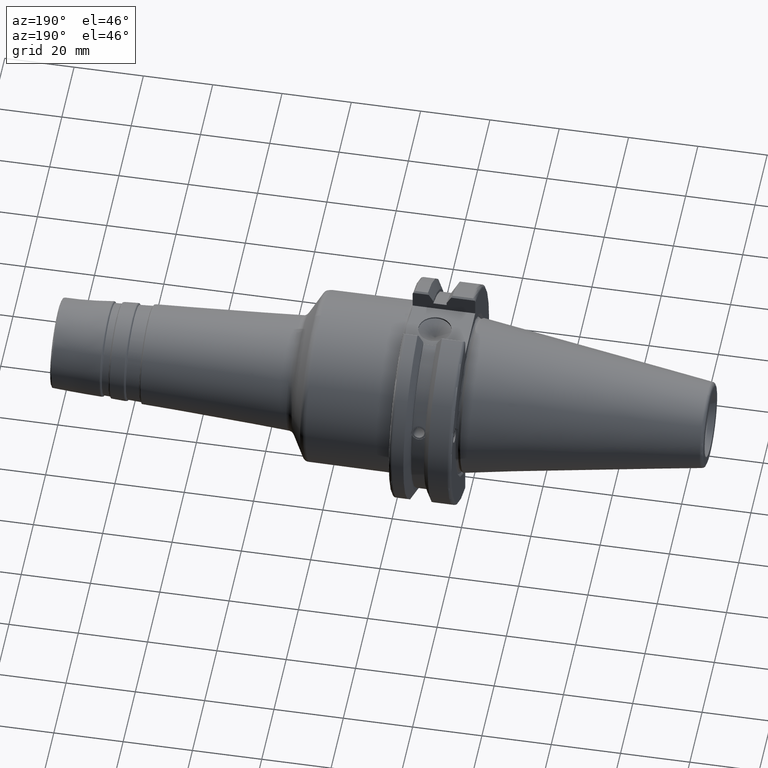
[diagram: clean part render]
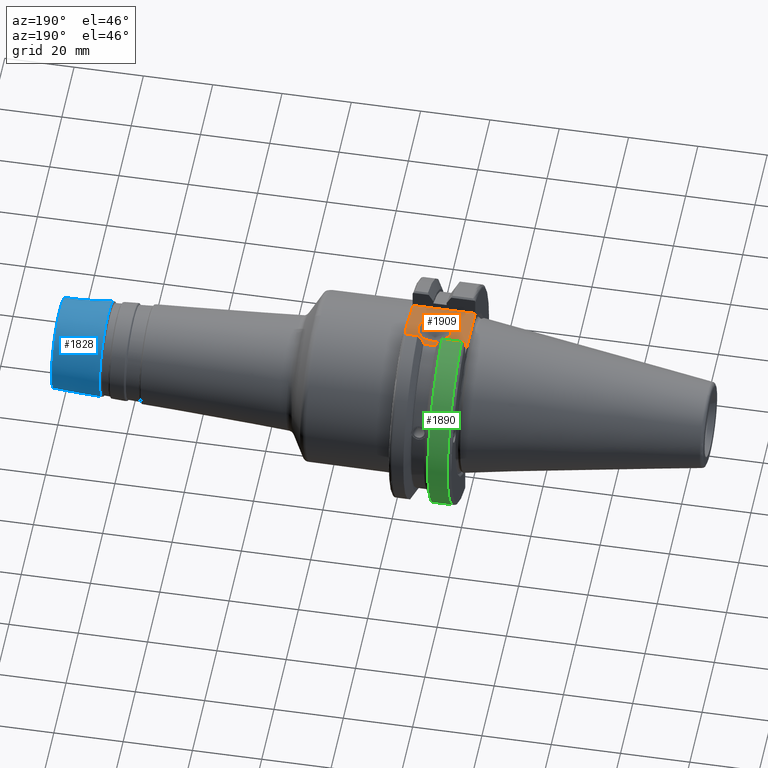
[diagram: same view with three faces highlighted in distinct colors, each labeled with its STEP entity id]
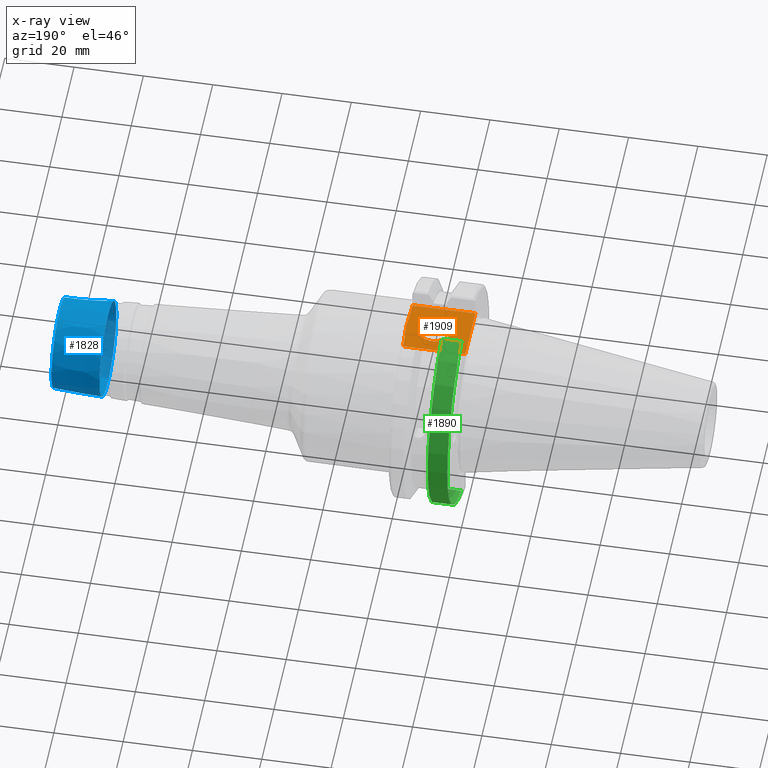
[diagram: x-ray of the same camera — body ghosted, the three highlighted faces saturated]
A machine part, auxiliary view with three faces highlighted in distinct colors.
The next image is the same camera in x-ray (body ghosted, the three faces saturated) — at least one of them is partly hidden behind the body in this view.
Their STEP definitions:

[orange] entity #1909 — the highlighted planar face has unit normal (0, 0, 1).
#81=B_SPLINE_CURVE_WITH_KNOTS('',3,(#2911,#2912,#2913,#2914,#2915,#2916,
#2917,#2918,#2919,#2920),.UNSPECIFIED.,.F.,.F.,(4,2,2,2,4),(1.28229186042809,
1.47392183654147,1.862003561099,2.25008528565653,2.44171526176991),
 .UNSPECIFIED.);
#129=FACE_BOUND('',#587,.T.);
#162=PLANE('',#2171);
#176=LINE('',#2952,#269);
#190=LINE('',#3113,#283);
#225=LINE('',#3517,#318);
#227=LINE('',#3560,#320);
#238=LINE('',#3622,#331);
#269=VECTOR('',#2352,10.);
#283=VECTOR('',#2430,10.);
#318=VECTOR('',#2615,10.);
#320=VECTOR('',#2625,10.);
#331=VECTOR('',#2646,10.);
#468=FACE_OUTER_BOUND('',#586,.T.);
#586=EDGE_LOOP('',(#1737,#1738,#1739,#1740,#1741,#1742));
#587=EDGE_LOOP('',(#1743));
#714=CIRCLE('',#2162,4.7625);
#768=VERTEX_POINT('',#2909);
#769=VERTEX_POINT('',#2910);
#775=VERTEX_POINT('',#2951);
#800=VERTEX_POINT('',#3111);
#877=VERTEX_POINT('',#3515);
#883=VERTEX_POINT('',#3559);
#914=VERTEX_POINT('',#3718);
#979=EDGE_CURVE('',#768,#769,#81,.F.);
#986=EDGE_CURVE('',#768,#775,#176,.T.);
#1024=EDGE_CURVE('',#800,#769,#190,.T.);
#1130=EDGE_CURVE('',#800,#877,#225,.T.);
#1138=EDGE_CURVE('',#883,#775,#227,.T.);
#1157=EDGE_CURVE('',#883,#877,#238,.T.);
#1191=EDGE_CURVE('',#914,#914,#714,.T.);
#1737=ORIENTED_EDGE('',*,*,#1024,.F.);
#1738=ORIENTED_EDGE('',*,*,#1130,.T.);
#1739=ORIENTED_EDGE('',*,*,#1157,.F.);
#1740=ORIENTED_EDGE('',*,*,#1138,.T.);
#1741=ORIENTED_EDGE('',*,*,#986,.F.);
#1742=ORIENTED_EDGE('',*,*,#979,.T.);
#1743=ORIENTED_EDGE('',*,*,#1191,.T.);
#1909=ADVANCED_FACE('',(#468,#129),#162,.T.);
#2162=AXIS2_PLACEMENT_3D('',#3719,#2718,#2719);
#2171=AXIS2_PLACEMENT_3D('',#3738,#2738,#2739);
#2352=DIRECTION('',(0.,-1.,0.));
#2430=DIRECTION('',(0.,-1.,0.));
#2615=DIRECTION('',(-1.,0.,0.));
#2625=DIRECTION('',(1.,-1.16558847729675E-16,0.));
#2646=DIRECTION('',(0.,1.,0.));
#2718=DIRECTION('center_axis',(0.,0.,-1.));
#2719=DIRECTION('ref_axis',(1.,0.,0.));
#2738=DIRECTION('center_axis',(0.,0.,1.));
#2739=DIRECTION('ref_axis',(1.,0.,0.));
#2909=CARTESIAN_POINT('',(19.05,-6.16948133962652,25.));
#2910=CARTESIAN_POINT('',(19.05,6.16948133962652,25.));
#2911=CARTESIAN_POINT('Ctrl Pts',(19.05,6.16948133962652,25.));
#2912=CARTESIAN_POINT('Ctrl Pts',(19.05,5.53071475258193,25.));
#2913=CARTESIAN_POINT('Ctrl Pts',(19.0917093675371,4.76533047486055,25.));
#2914=CARTESIAN_POINT('Ctrl Pts',(19.2334466867335,2.83816328553263,25.));
#2915=CARTESIAN_POINT('Ctrl Pts',(19.3885621722339,1.29360574852511,25.));
#2916=CARTESIAN_POINT('Ctrl Pts',(19.3885621722339,-1.29360574852511,25.));
#2917=CARTESIAN_POINT('Ctrl Pts',(19.2334466867335,-2.83816328553263,25.));
#2918=CARTESIAN_POINT('Ctrl Pts',(19.0917093675371,-4.76533047486055,25.));
#2919=CARTESIAN_POINT('Ctrl Pts',(19.05,-5.53071475258193,25.));
#2920=CARTESIAN_POINT('Ctrl Pts',(19.05,-6.16948133962652,25.));
#2951=CARTESIAN_POINT('',(19.05,-8.19,25.));
#2952=CARTESIAN_POINT('',(19.05,0.,25.));
#3111=CARTESIAN_POINT('',(19.05,8.19,25.));
#3113=CARTESIAN_POINT('',(19.05,0.,25.));
#3515=CARTESIAN_POINT('',(1.,8.19,25.));
#3517=CARTESIAN_POINT('',(20.05,8.19,25.));
#3559=CARTESIAN_POINT('',(1.,-8.19,25.));
#3560=CARTESIAN_POINT('',(1.,-8.19,25.));
#3622=CARTESIAN_POINT('',(1.,15.875,25.));
#3718=CARTESIAN_POINT('',(6.4135,-5.83238038093927E-16,25.));
#3719=CARTESIAN_POINT('Origin',(11.176,0.,25.));
#3738=CARTESIAN_POINT('Origin',(14.62,0.,25.));

[blue] entity #1828 — the highlighted conical surface has half-angle 3 deg.
#173=LINE('',#2873,#266);
#266=VECTOR('',#2293,13.3848185972057);
#359=CONICAL_SURFACE('',#1988,13.3848185972057,0.05235987755983);
#387=FACE_OUTER_BOUND('',#493,.T.);
#493=EDGE_LOOP('',(#1281,#1282,#1283,#1284,#1285,#1286));
#631=CIRCLE('',#1985,13.7575507230413);
#632=CIRCLE('',#1986,13.7575507230413);
#634=CIRCLE('',#1989,13.0248324840198);
#635=CIRCLE('',#1990,13.0248324840198);
#754=VERTEX_POINT('',#2864);
#755=VERTEX_POINT('',#2865);
#756=VERTEX_POINT('',#2870);
#757=VERTEX_POINT('',#2871);
#957=EDGE_CURVE('',#754,#755,#631,.T.);
#958=EDGE_CURVE('',#755,#754,#632,.T.);
#960=EDGE_CURVE('',#756,#757,#634,.T.);
#961=EDGE_CURVE('',#756,#755,#173,.T.);
#962=EDGE_CURVE('',#757,#756,#635,.T.);
#1281=ORIENTED_EDGE('',*,*,#960,.F.);
#1282=ORIENTED_EDGE('',*,*,#961,.T.);
#1283=ORIENTED_EDGE('',*,*,#957,.F.);
#1284=ORIENTED_EDGE('',*,*,#958,.F.);
#1285=ORIENTED_EDGE('',*,*,#961,.F.);
#1286=ORIENTED_EDGE('',*,*,#962,.F.);
#1828=ADVANCED_FACE('',(#387),#359,.T.);
#1985=AXIS2_PLACEMENT_3D('',#2866,#2283,#2284);
#1986=AXIS2_PLACEMENT_3D('',#2867,#2285,#2286);
#1988=AXIS2_PLACEMENT_3D('',#2869,#2289,#2290);
#1989=AXIS2_PLACEMENT_3D('',#2872,#2291,#2292);
#1990=AXIS2_PLACEMENT_3D('',#2874,#2294,#2295);
#2283=DIRECTION('center_axis',(-1.,0.,0.));
#2284=DIRECTION('ref_axis',(0.,-1.,3.06161699786838E-17));
#2285=DIRECTION('center_axis',(-1.,0.,0.));
#2286=DIRECTION('ref_axis',(0.,-1.,3.06161699786838E-17));
#2289=DIRECTION('center_axis',(-1.,0.,0.));
#2290=DIRECTION('ref_axis',(0.,1.,0.));
#2291=DIRECTION('center_axis',(1.,0.,0.));
#2292=DIRECTION('ref_axis',(0.,-1.,3.06161699786838E-17));
#2293=DIRECTION('',(-0.998629534754574,-0.052335956242944,-6.40930612932372E-18));
#2294=DIRECTION('center_axis',(1.,0.,0.));
#2295=DIRECTION('ref_axis',(0.,-1.,3.06161699786838E-17));
#2864=CARTESIAN_POINT('',(105.545071105762,-1.68481404570799E-15,13.7575507230413));
#2865=CARTESIAN_POINT('',(105.545071105762,-13.7575507230413,-1.68481404570799E-15));
#2866=CARTESIAN_POINT('Origin',(105.545071105762,0.,-2.10601755713499E-15));
#2867=CARTESIAN_POINT('Origin',(105.545071105762,0.,-2.10601755713499E-15));
#2869=CARTESIAN_POINT('Origin',(112.657223746739,0.,0.));
#2870=CARTESIAN_POINT('',(119.526167978121,-13.0248324840198,-1.59508194109854E-15));
#2871=CARTESIAN_POINT('',(119.526167978121,-1.59508194109854E-15,13.0248324840198));
#2872=CARTESIAN_POINT('Origin',(119.526167978121,0.,-1.99385242637317E-15));
#2873=CARTESIAN_POINT('',(112.657223746739,-13.3848185972057,-1.63916752522359E-15));
#2874=CARTESIAN_POINT('Origin',(119.526167978121,0.,-1.99385242637317E-15));

[green] entity #1890 — the highlighted cylindrical surface (partial cylindrical patch) has radius 31.75 mm, axis along (1, 0, 0).
#72=CYLINDRICAL_SURFACE('',#2140,31.75);
#243=LINE('',#3666,#336);
#245=LINE('',#3669,#338);
#336=VECTOR('',#2663,10.);
#338=VECTOR('',#2667,10.);
#449=FACE_OUTER_BOUND('',#566,.T.);
#566=EDGE_LOOP('',(#1643,#1644,#1645,#1646));
#691=CIRCLE('',#2105,31.75);
#705=CIRCLE('',#2138,31.75);
#855=VERTEX_POINT('',#3415);
#856=VERTEX_POINT('',#3419);
#901=VERTEX_POINT('',#3639);
#902=VERTEX_POINT('',#3648);
#1099=EDGE_CURVE('',#855,#856,#691,.T.);
#1166=EDGE_CURVE('',#901,#902,#705,.T.);
#1169=EDGE_CURVE('',#902,#855,#243,.T.);
#1171=EDGE_CURVE('',#856,#901,#245,.T.);
#1643=ORIENTED_EDGE('',*,*,#1166,.F.);
#1644=ORIENTED_EDGE('',*,*,#1171,.F.);
#1645=ORIENTED_EDGE('',*,*,#1099,.F.);
#1646=ORIENTED_EDGE('',*,*,#1169,.F.);
#1890=ADVANCED_FACE('',(#449),#72,.T.);
#2105=AXIS2_PLACEMENT_3D('',#3420,#2562,#2563);
#2138=AXIS2_PLACEMENT_3D('',#3649,#2659,#2660);
#2140=AXIS2_PLACEMENT_3D('',#3668,#2665,#2666);
#2562=DIRECTION('center_axis',(1.,0.,0.));
#2563=DIRECTION('ref_axis',(0.,0.,-1.));
#2659=DIRECTION('center_axis',(-1.,0.,0.));
#2660=DIRECTION('ref_axis',(0.,1.,1.60812264967664E-16));
#2663=DIRECTION('',(1.,0.,0.));
#2665=DIRECTION('center_axis',(1.,0.,0.));
#2666=DIRECTION('ref_axis',(0.,1.,0.));
#2667=DIRECTION('',(-1.,0.,0.));
#3415=CARTESIAN_POINT('',(7.64983323092436,8.67204822802685,-30.5427254764662));
#3419=CARTESIAN_POINT('',(7.64983323092436,8.67204822802685,30.5427254764662));
#3420=CARTESIAN_POINT('Origin',(7.64983323092436,0.,0.));
#3639=CARTESIAN_POINT('',(2.,8.67204822802685,30.5427254764662));
#3648=CARTESIAN_POINT('',(2.,8.67204822802685,-30.5427254764662));
#3649=CARTESIAN_POINT('Origin',(2.,0.,0.));
#3666=CARTESIAN_POINT('',(4.32491661546218,8.67204822802685,-30.5427254764662));
#3668=CARTESIAN_POINT('Origin',(4.32491661546218,0.,0.));
#3669=CARTESIAN_POINT('',(4.32491661546218,8.67204822802685,30.5427254764662));